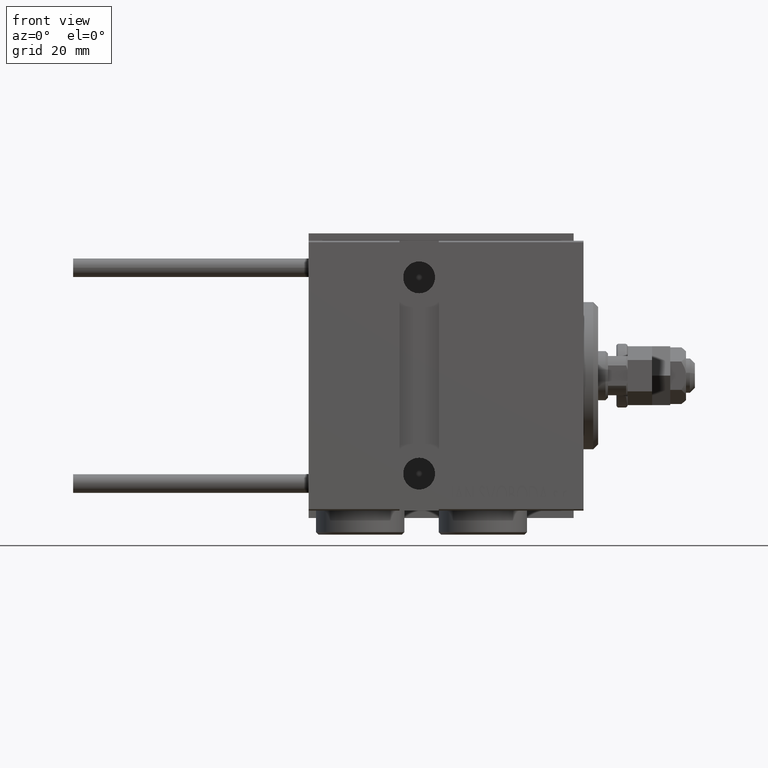
[diagram: clean part render]
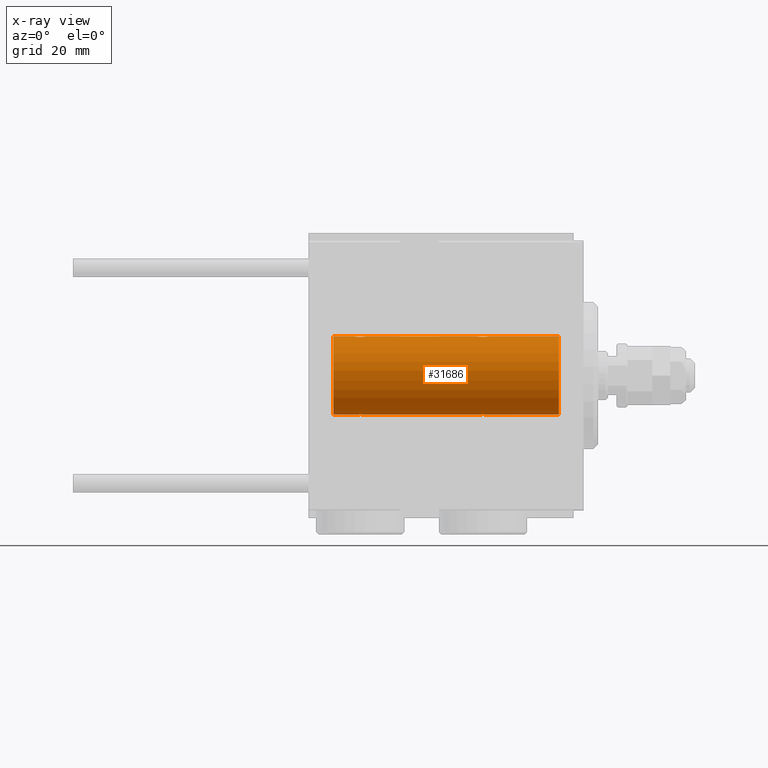
[diagram: x-ray — body ghosted, one internal face saturated and labeled with its STEP entity id]
A machine part, front view, then the same camera in x-ray: the body is ghosted and one INTERNAL B-rep face — a face not visible from any outside direction — is saturated and labeled: STEP entity #31686.
In plain terms, the highlighted cylindrical surface (partial cylindrical patch) has radius 8 mm, axis along (1, 0, -0).
Its self-contained STEP definition (entity closure, byte-faithful):
#20 = CYLINDRICAL_SURFACE ( 'NONE', #2966, 7.999999999999998224 ) ;
#470 = CARTESIAN_POINT ( 'NONE',  ( 21.74181525892405986, 0.1645871186493928773, -7.998709545350109806 ) ) ;
#520 = B_SPLINE_CURVE_WITH_KNOTS ( 'NONE', 3,
 ( #23271, #49651, #50652, #26890, #50157, #3325, #46794, #6960, #50400, #18122, #18367, #49905, #42148, #38788, #14224, #42910, #14476, #30545, #30298, #46287, #30040, #42651 ),
 .UNSPECIFIED., .F., .F.,
 ( 4, 2, 2, 2, 2, 2, 2, 2, 2, 2, 4 ),
 ( 7.980102535687292301E-19, 0.0004892585179631255259, 0.0009785170359262504013, 0.001467775553889375277, 0.001957034071852499935, 0.002201663330834062373, 0.002446292589815624811, 0.002935551107778730170, 0.003424809625741836398, 0.003669438884723392764, 0.003914068143704949564 ),
 .UNSPECIFIED. ) ;
#1534 = CARTESIAN_POINT ( 'NONE',  ( 20.41880150506445091, 1.250030652953407762, 7.901735465557271354 ) ) ;
#2336 = CARTESIAN_POINT ( 'NONE',  ( 21.75000000000000000, -5.069746561688950233E-16, 7.999999999999998224 ) ) ;
#2547 = CARTESIAN_POINT ( 'NONE',  ( 20.66417091690312091, 1.241868426634441747, -7.903038949453011774 ) ) ;
#2787 = CARTESIAN_POINT ( 'NONE',  ( 20.17540961683120315, 1.209888574283871199, 7.907997942808293601 ) ) ;
#2798 = CARTESIAN_POINT ( 'NONE',  ( 21.50031982237068107, 0.7674545364220053401, -7.963965305651049320 ) ) ;
#2966 = AXIS2_PLACEMENT_3D ( 'NONE', #39607, #8556, #8809 ) ;
#3009 = AXIS2_PLACEMENT_3D ( 'NONE', #41959, #14039, #29857 ) ;
#3041 = CARTESIAN_POINT ( 'NONE',  ( 19.25818474107593659, 0.1645871186493936822, 7.998709545350108918 ) ) ;
#3078 = DIRECTION ( 'NONE',  ( -1.000000000000000000, -0.000000000000000000, -0.000000000000000000 ) ) ;
#3325 = CARTESIAN_POINT ( 'NONE',  ( 46.26853298044905216, 0.9991832710565884401, 7.938201675418735448 ) ) ;
#4322 = DIRECTION ( 'NONE',  ( -1.000000000000000000, -0.000000000000000000, -0.000000000000000000 ) ) ;
#4904 = CARTESIAN_POINT ( 'NONE',  ( 21.59173022154696753, 0.6304521543648642368, 7.976560245937300841 ) ) ;
#5338 = LINE ( 'NONE', #48044, #49182 ) ;
#5751 = VECTOR ( 'NONE', #10424, 1000.000000000000000 ) ;
#5787 = LINE ( 'NONE', #45354, #5751 ) ;
#6180 = CARTESIAN_POINT ( 'NONE',  ( 19.87074834296262438, 1.092266057037466487, -7.925334523600932712 ) ) ;
#6404 = CARTESIAN_POINT ( 'NONE',  ( 44.25000000000000711, -6.574401834785964054E-15, -7.999999999999998224 ) ) ;
#6682 = CARTESIAN_POINT ( 'NONE',  ( 19.25000000000000711, -6.253246997522681077E-15, -7.999999999999998224 ) ) ;
#6926 = CARTESIAN_POINT ( 'NONE',  ( 20.09742586614093085, 1.186236229830392341, 7.911627449023364456 ) ) ;
#6955 = LINE ( 'NONE', #22745, #43907 ) ;
#6960 = CARTESIAN_POINT ( 'NONE',  ( 45.82849869077222138, 1.217000984963205967, 7.907141142849010151 ) ) ;
#7174 = CARTESIAN_POINT ( 'NONE',  ( 19.73260908389369916, 1.000368629246206842, 7.938072339095197272 ) ) ;
#7698 = DIRECTION ( 'NONE',  ( -1.000000000000000000, -0.000000000000000000, -0.000000000000000000 ) ) ;
#7775 = FACE_OUTER_BOUND ( 'NONE', #39560, .T. ) ;
#7964 = CARTESIAN_POINT ( 'NONE',  ( 21.68608944587722576, 0.4029817482954558550, -7.990203133273719338 ) ) ;
#8101 = VERTEX_POINT ( 'NONE', #2336 ) ;
#8556 = DIRECTION ( 'NONE',  ( -1.000000000000000000, -0.000000000000000000, -0.000000000000000000 ) ) ;
#8787 = CARTESIAN_POINT ( 'NONE',  ( 21.71733208341543175, 0.3277916934117525161, 7.994719249713582165 ) ) ;
#8809 = DIRECTION ( 'NONE',  ( 0.000000000000000000, 0.000000000000000000, 1.000000000000000000 ) ) ;
#9964 = CARTESIAN_POINT ( 'NONE',  ( 44.25000000000000711, -6.574401834785964054E-15, -7.999999999999998224 ) ) ;
#10048 = CARTESIAN_POINT ( 'NONE',  ( 45.90257413385905494, 1.186236229830389455, -7.911627449023362679 ) ) ;
#10060 = CARTESIAN_POINT ( 'NONE',  ( 19.87017729360625395, 1.092113850919000928, 7.925358570881162024 ) ) ;
#10424 = DIRECTION ( 'NONE',  ( -1.000000000000000000, -0.000000000000000000, -0.000000000000000000 ) ) ;
#10678 = EDGE_CURVE ( 'NONE', #33034, #48731, #15464, .T. ) ;
#11001 = CARTESIAN_POINT ( 'NONE',  ( 21.75000000000000355, 9.797173987965608855E-16, -7.999999999999998224 ) ) ;
#11598 = CARTESIAN_POINT ( 'NONE',  ( 51.00000000000000000, 9.797174393178823685E-16, -7.999999999999998224 ) ) ;
#11929 = CARTESIAN_POINT ( 'NONE',  ( 46.74999999999999289, 9.797173987957720246E-16, -7.999999999999998224 ) ) ;
#12027 = ORIENTED_EDGE ( 'NONE', *, *, #14874, .T. ) ;
#12380 = DIRECTION ( 'NONE',  ( -1.000000000000000000, -0.000000000000000000, -0.000000000000000000 ) ) ;
#12665 = EDGE_CURVE ( 'NONE', #32750, #8101, #6955, .T. ) ;
#12671 = CARTESIAN_POINT ( 'NONE',  ( 21.75000000000000000, 0.1654536524218027937, 7.999999999999998224 ) ) ;
#12917 = CARTESIAN_POINT ( 'NONE',  ( 19.25000000000000711, -6.253246997522681077E-15, -7.999999999999998224 ) ) ;
#13776 = DIRECTION ( 'NONE',  ( 0.000000000000000000, 0.000000000000000000, 1.000000000000000000 ) ) ;
#14039 = DIRECTION ( 'NONE',  ( -1.000000000000000000, 0.000000000000000000, 0.000000000000000000 ) ) ;
#14188 = CARTESIAN_POINT ( 'NONE',  ( 19.25000000000000355, -4.052141811848771341E-23, 7.999999999999998224 ) ) ;
#14224 = CARTESIAN_POINT ( 'NONE',  ( 44.73260908389369916, 1.000368629246204843, 7.938072339095200824 ) ) ;
#14447 = CARTESIAN_POINT ( 'NONE',  ( 20.90257413385907270, 1.186236229830388345, -7.911627449023368008 ) ) ;
#14476 = CARTESIAN_POINT ( 'NONE',  ( 44.40795032378955653, 0.6298709050361934736, 7.976604806854521001 ) ) ;
#14874 = EDGE_CURVE ( 'NONE', #8101, #33034, #30574, .T. ) ;
#14880 = ORIENTED_EDGE ( 'NONE', *, *, #12665, .T. ) ;
#15286 = CARTESIAN_POINT ( 'NONE',  ( 4.999999999999997335, 9.797174393178823685E-16, -7.999999999999998224 ) ) ;
#15464 = LINE ( 'NONE', #43132, #42866 ) ;
#15991 = VERTEX_POINT ( 'NONE', #21905 ) ;
#15996 = CARTESIAN_POINT ( 'NONE',  ( 21.75000000000000355, 9.797173987965608855E-16, -7.999999999999998224 ) ) ;
#16538 = ORIENTED_EDGE ( 'NONE', *, *, #40256, .T. ) ;
#16769 = VECTOR ( 'NONE', #12380, 1000.000000000000000 ) ;
#17071 = CIRCLE ( 'NONE', #3009, 7.999999999999998224 ) ;
#17324 = CARTESIAN_POINT ( 'NONE',  ( 20.33582908309688975, 1.241868426634447298, 7.903038949453013551 ) ) ;
#17809 = CARTESIAN_POINT ( 'NONE',  ( 45.58119849493557751, 1.250030652953401322, -7.901735465557271354 ) ) ;
#17868 = EDGE_CURVE ( 'NONE', #46331, #18095, #38146, .T. ) ;
#18095 = VERTEX_POINT ( 'NONE', #11001 ) ;
#18122 = CARTESIAN_POINT ( 'NONE',  ( 45.41880150506444380, 1.250030652953406429, 7.901735465557269578 ) ) ;
#18367 = CARTESIAN_POINT ( 'NONE',  ( 45.33582908309688975, 1.241868426634446854, 7.903038949453013551 ) ) ;
#18590 = CARTESIAN_POINT ( 'NONE',  ( 19.28266791658456825, 0.3277916934117463543, -7.994719249713585718 ) ) ;
#18717 = EDGE_CURVE ( 'NONE', #39881, #18095, #35925, .T. ) ;
#18838 = CARTESIAN_POINT ( 'NONE',  ( 19.40795032378956364, 0.6298709050361938067, 7.976604806854522778 ) ) ;
#18981 = ORIENTED_EDGE ( 'NONE', *, *, #28637, .T. ) ;
#19225 = ORIENTED_EDGE ( 'NONE', *, *, #10678, .T. ) ;
#19524 = EDGE_CURVE ( 'NONE', #15991, #31910, #41563, .T. ) ;
#19617 = CARTESIAN_POINT ( 'NONE',  ( 21.70976650520091411, 0.3250523954932730830, -7.993796610540221614 ) ) ;
#20703 = CARTESIAN_POINT ( 'NONE',  ( 21.26853298044905216, 0.9991832710565867748, 7.938201675418735448 ) ) ;
#21209 = CARTESIAN_POINT ( 'NONE',  ( 20.82849869077221783, 1.217000984963207966, 7.907141142849010151 ) ) ;
#21455 = CARTESIAN_POINT ( 'NONE',  ( 44.28266791658455759, 0.3277916934117462988, -7.994719249713585718 ) ) ;
#21684 = CARTESIAN_POINT ( 'NONE',  ( 19.25000000000000355, -4.052141811848771341E-23, 7.999999999999998224 ) ) ;
#21905 = CARTESIAN_POINT ( 'NONE',  ( 51.00000000000000000, 0.000000000000000000, 7.999999999999998224 ) ) ;
#21944 = CARTESIAN_POINT ( 'NONE',  ( 45.17150130922779283, 1.217000984963200416, -7.907141142849010151 ) ) ;
#22200 = CARTESIAN_POINT ( 'NONE',  ( 45.82459038316879685, 1.209888574283866980, -7.907997942808293601 ) ) ;
#22305 = CARTESIAN_POINT ( 'NONE',  ( 44.25000000000000711, -4.052181254894032391E-23, 7.999999999999998224 ) ) ;
#22477 = CARTESIAN_POINT ( 'NONE',  ( 19.25000000000000711, 0.1654536524217966875, -8.000000000000000000 ) ) ;
#22717 = CARTESIAN_POINT ( 'NONE',  ( 19.49968017762932959, 0.7674545364220068944, 7.963965305651043991 ) ) ;
#22745 = CARTESIAN_POINT ( 'NONE',  ( 51.00000000000000000, 0.000000000000000000, 7.999999999999998224 ) ) ;
#22989 = CARTESIAN_POINT ( 'NONE',  ( 19.50115498801909197, 0.7689725568822818325, -7.963798983873345172 ) ) ;
#23271 = CARTESIAN_POINT ( 'NONE',  ( 46.74999999999999289, -8.213474395867002827E-16, 7.999999999999998224 ) ) ;
#23373 = LINE ( 'NONE', #34995, #41074 ) ;
#24041 = ORIENTED_EDGE ( 'NONE', *, *, #17868, .T. ) ;
#25339 = CARTESIAN_POINT ( 'NONE',  ( 45.33619145091235225, 1.249938428426572656, -7.901750054830718462 ) ) ;
#25601 = CARTESIAN_POINT ( 'NONE',  ( 44.50115498801908842, 0.7689725568822843860, -7.963798983873343396 ) ) ;
#25845 = CARTESIAN_POINT ( 'NONE',  ( 46.12982270639373183, 1.092113850918999818, -7.925358570881163800 ) ) ;
#25904 = ORIENTED_EDGE ( 'NONE', *, *, #29917, .F. ) ;
#26083 = CARTESIAN_POINT ( 'NONE',  ( 46.59204967621045057, 0.6298709050361936956, -7.976604806854522778 ) ) ;
#26114 = CARTESIAN_POINT ( 'NONE',  ( 20.33619145091235936, 1.249938428426572656, -7.901750054830717573 ) ) ;
#26341 = CARTESIAN_POINT ( 'NONE',  ( 44.25000000000001421, 0.1654536524217962712, -8.000000000000000000 ) ) ;
#26369 = CARTESIAN_POINT ( 'NONE',  ( 21.26739091610630084, 1.000368629246204399, -7.938072339095202601 ) ) ;
#26890 = CARTESIAN_POINT ( 'NONE',  ( 46.59173022154698884, 0.6304521543648644588, 7.976560245937302618 ) ) ;
#27468 = B_SPLINE_CURVE_WITH_KNOTS ( 'NONE', 3,
 ( #6404, #26341, #21455, #30241, #25601, #29744, #36967, #21944, #25339, #17809, #45470, #22200, #10048, #25845, #33355, #41595, #26083, #33850, #29992, #37462, #41349, #37970 ),
 .UNSPECIFIED., .F., .F.,
 ( 4, 2, 2, 2, 2, 2, 2, 2, 2, 2, 4 ),
 ( 7.505074081152076538E-19, 0.0004892585179630999388, 0.0009785170359261990101, 0.001467775553889298082, 0.001957034071852397587, 0.002201663330833957422, 0.002446292589815517258, 0.002935551107778656445, 0.003424809625741795632, 0.003669438884723368911, 0.003914068143704942625 ),
 .UNSPECIFIED. ) ;
#27494 = ORIENTED_EDGE ( 'NONE', *, *, #37772, .T. ) ;
#27662 = CARTESIAN_POINT ( 'NONE',  ( 51.00000000000000000, 9.797174393178823685E-16, -7.999999999999998224 ) ) ;
#27803 = ORIENTED_EDGE ( 'NONE', *, *, #19524, .F. ) ;
#28521 = VERTEX_POINT ( 'NONE', #39043 ) ;
#28637 = EDGE_CURVE ( 'NONE', #39881, #38994, #27468, .T. ) ;
#28999 = CARTESIAN_POINT ( 'NONE',  ( 21.75000000000000000, -5.069746561688950233E-16, 7.999999999999998224 ) ) ;
#29744 = CARTESIAN_POINT ( 'NONE',  ( 44.73146701955094784, 0.9991832710565826670, -7.938201675418733672 ) ) ;
#29857 = DIRECTION ( 'NONE',  ( 0.000000000000000000, 0.000000000000000000, 1.000000000000000000 ) ) ;
#29917 = EDGE_CURVE ( 'NONE', #46331, #38993, #5338, .T. ) ;
#29992 = CARTESIAN_POINT ( 'NONE',  ( 46.70976650520091766, 0.3250523954932729165, -7.993796610540221614 ) ) ;
#30040 = CARTESIAN_POINT ( 'NONE',  ( 44.25000000000001421, 0.08164616652084527582, 7.999999999999998224 ) ) ;
#30241 = CARTESIAN_POINT ( 'NONE',  ( 44.40826977845300405, 0.6304521543648577975, -7.976560245937304394 ) ) ;
#30298 = CARTESIAN_POINT ( 'NONE',  ( 44.29023349479908234, 0.3250523954932734161, 7.993796610540221614 ) ) ;
#30545 = CARTESIAN_POINT ( 'NONE',  ( 44.31391055412278490, 0.4029817482954566876, 7.990203133273719338 ) ) ;
#30574 = B_SPLINE_CURVE_WITH_KNOTS ( 'NONE', 3,
 ( #28999, #12671, #8787, #4904, #44732, #20703, #40855, #21209, #36473, #1534, #17324, #2787, #6926, #10060, #7174, #22717, #18838, #38482, #42610, #3041, #42356, #14188 ),
 .UNSPECIFIED., .F., .F.,
 ( 4, 2, 2, 2, 2, 2, 2, 2, 2, 2, 4 ),
 ( 4.925698363725794783E-19, 0.0004892585179631285617, 0.0009785170359262564729, 0.001467775553889384601, 0.001957034071852512512, 0.002201663330834071480, 0.002446292589815630015, 0.002935551107778737977, 0.003424809625741846372, 0.003669438884723400570, 0.003914068143704954768 ),
 .UNSPECIFIED. ) ;
#31686 = ADVANCED_FACE ( 'NONE', ( #7775 ), #20, .F. ) ;
#31910 = VERTEX_POINT ( 'NONE', #11598 ) ;
#32750 = VERTEX_POINT ( 'NONE', #22305 ) ;
#33034 = VERTEX_POINT ( 'NONE', #21684 ) ;
#33355 = CARTESIAN_POINT ( 'NONE',  ( 46.26739091610629373, 1.000368629246204399, -7.938072339095200824 ) ) ;
#33850 = CARTESIAN_POINT ( 'NONE',  ( 46.68608944587722220, 0.4029817482954573538, -7.990203133273721114 ) ) ;
#33877 = CARTESIAN_POINT ( 'NONE',  ( 19.40826977845302537, 0.6304521543648575754, -7.976560245937306171 ) ) ;
#34995 = CARTESIAN_POINT ( 'NONE',  ( 51.00000000000000000, 0.000000000000000000, 7.999999999999998224 ) ) ;
#35925 = LINE ( 'NONE', #27662, #16769 ) ;
#36473 = CARTESIAN_POINT ( 'NONE',  ( 20.66380854908764064, 1.249938428426578652, 7.901750054830715797 ) ) ;
#36967 = CARTESIAN_POINT ( 'NONE',  ( 44.87074834296262082, 1.092266057037466265, -7.925334523600929160 ) ) ;
#37462 = CARTESIAN_POINT ( 'NONE',  ( 46.74181525892407052, 0.1645871186493928495, -7.998709545350109806 ) ) ;
#37772 = EDGE_CURVE ( 'NONE', #15991, #28521, #23373, .T. ) ;
#37970 = CARTESIAN_POINT ( 'NONE',  ( 46.74999999999999289, 9.797173987957720246E-16, -7.999999999999998224 ) ) ;
#37998 = CARTESIAN_POINT ( 'NONE',  ( 20.58119849493555620, 1.250030652953401988, -7.901735465557267801 ) ) ;
#38146 = B_SPLINE_CURVE_WITH_KNOTS ( 'NONE', 3,
 ( #6682, #22477, #18590, #33877, #22989, #46261, #6180, #38759, #26114, #37998, #2547, #49879, #14447, #46005, #26369, #2798, #39010, #7964, #19617, #470, #39537, #15996 ),
 .UNSPECIFIED., .F., .F.,
 ( 4, 2, 2, 2, 2, 2, 2, 2, 2, 2, 4 ),
 ( 4.384776375612755932E-19, 0.0004892585179631271522, 0.0009785170359262538708, 0.001467775553889380698, 0.001957034071852507308, 0.002201663330834065842, 0.002446292589815623510, 0.002935551107778730170, 0.003424809625741835964, 0.003669438884723391463, 0.003914068143704946962 ),
 .UNSPECIFIED. ) ;
#38482 = CARTESIAN_POINT ( 'NONE',  ( 19.31391055412277069, 0.4029817482954574648, 7.990203133273719338 ) ) ;
#38759 = CARTESIAN_POINT ( 'NONE',  ( 20.17150130922778573, 1.217000984963200860, -7.907141142849008375 ) ) ;
#38788 = CARTESIAN_POINT ( 'NONE',  ( 44.87017729360625395, 1.092113850919002038, 7.925358570881160247 ) ) ;
#38993 = VERTEX_POINT ( 'NONE', #15286 ) ;
#38994 = VERTEX_POINT ( 'NONE', #11929 ) ;
#39010 = CARTESIAN_POINT ( 'NONE',  ( 21.59204967621043991, 0.6298709050361920303, -7.976604806854521001 ) ) ;
#39043 = CARTESIAN_POINT ( 'NONE',  ( 46.74999999999999289, -8.213474395867002827E-16, 7.999999999999998224 ) ) ;
#39537 = CARTESIAN_POINT ( 'NONE',  ( 21.75000000000000000, 0.08164616652084619175, -7.999999999999998224 ) ) ;
#39560 = EDGE_LOOP ( 'NONE', ( #45639, #27803, #27494, #49473, #14880, #12027, #19225, #16538, #25904, #24041, #48745, #18981 ) ) ;
#39607 = CARTESIAN_POINT ( 'NONE',  ( 51.00000000000000000, 0.000000000000000000, 0.000000000000000000 ) ) ;
#39881 = VERTEX_POINT ( 'NONE', #9964 ) ;
#40102 = CARTESIAN_POINT ( 'NONE',  ( 4.999999999999997335, 0.000000000000000000, 7.999999999999998224 ) ) ;
#40256 = EDGE_CURVE ( 'NONE', #48731, #38993, #17071, .T. ) ;
#40855 = CARTESIAN_POINT ( 'NONE',  ( 21.12925165703737918, 1.092266057037473592, 7.925334523600929160 ) ) ;
#41074 = VECTOR ( 'NONE', #47686, 1000.000000000000000 ) ;
#41349 = CARTESIAN_POINT ( 'NONE',  ( 46.75000000000000000, 0.08164616652084634441, -8.000000000000000000 ) ) ;
#41563 = CIRCLE ( 'NONE', #50617, 7.999999999999998224 ) ;
#41595 = CARTESIAN_POINT ( 'NONE',  ( 46.50031982237067751, 0.7674545364220052290, -7.963965305651049320 ) ) ;
#41959 = CARTESIAN_POINT ( 'NONE',  ( 4.999999999999997335, 0.000000000000000000, 0.000000000000000000 ) ) ;
#42148 = CARTESIAN_POINT ( 'NONE',  ( 45.09742586614095217, 1.186236229830393452, 7.911627449023366232 ) ) ;
#42356 = CARTESIAN_POINT ( 'NONE',  ( 19.25000000000000355, 0.08164616652084565052, 7.999999999999996447 ) ) ;
#42610 = CARTESIAN_POINT ( 'NONE',  ( 19.29023349479908234, 0.3250523954932734716, 7.993796610540219838 ) ) ;
#42651 = CARTESIAN_POINT ( 'NONE',  ( 44.25000000000000711, -4.052181254894032391E-23, 7.999999999999998224 ) ) ;
#42866 = VECTOR ( 'NONE', #7698, 1000.000000000000000 ) ;
#42910 = CARTESIAN_POINT ( 'NONE',  ( 44.49968017762931538, 0.7674545364220040078, 7.963965305651043991 ) ) ;
#43132 = CARTESIAN_POINT ( 'NONE',  ( 51.00000000000000000, 0.000000000000000000, 7.999999999999998224 ) ) ;
#43135 = EDGE_CURVE ( 'NONE', #28521, #32750, #520, .T. ) ;
#43907 = VECTOR ( 'NONE', #3078, 1000.000000000000000 ) ;
#44732 = CARTESIAN_POINT ( 'NONE',  ( 21.49884501198092579, 0.7689725568822877166, 7.963798983873341619 ) ) ;
#45354 = CARTESIAN_POINT ( 'NONE',  ( 51.00000000000000000, 9.797174393178823685E-16, -7.999999999999998224 ) ) ;
#45470 = CARTESIAN_POINT ( 'NONE',  ( 45.66417091690310315, 1.241868426634441969, -7.903038949453011774 ) ) ;
#45639 = ORIENTED_EDGE ( 'NONE', *, *, #47288, .F. ) ;
#46005 = CARTESIAN_POINT ( 'NONE',  ( 21.12982270639374605, 1.092113850918997153, -7.925358570881165576 ) ) ;
#46261 = CARTESIAN_POINT ( 'NONE',  ( 19.73146701955095494, 0.9991832710565806686, -7.938201675418735448 ) ) ;
#46287 = CARTESIAN_POINT ( 'NONE',  ( 44.25818474107593659, 0.1645871186493931548, 7.998709545350111583 ) ) ;
#46331 = VERTEX_POINT ( 'NONE', #12917 ) ;
#46794 = CARTESIAN_POINT ( 'NONE',  ( 46.12925165703737207, 1.092266057037471594, 7.925334523600927383 ) ) ;
#47288 = EDGE_CURVE ( 'NONE', #31910, #38994, #5787, .T. ) ;
#47686 = DIRECTION ( 'NONE',  ( -1.000000000000000000, -0.000000000000000000, -0.000000000000000000 ) ) ;
#48044 = CARTESIAN_POINT ( 'NONE',  ( 51.00000000000000000, 9.797174393178823685E-16, -7.999999999999998224 ) ) ;
#48731 = VERTEX_POINT ( 'NONE', #40102 ) ;
#48745 = ORIENTED_EDGE ( 'NONE', *, *, #18717, .F. ) ;
#49182 = VECTOR ( 'NONE', #4322, 1000.000000000000000 ) ;
#49473 = ORIENTED_EDGE ( 'NONE', *, *, #43135, .T. ) ;
#49651 = CARTESIAN_POINT ( 'NONE',  ( 46.75000000000000000, 0.1654536524218023774, 7.999999999999998224 ) ) ;
#49879 = CARTESIAN_POINT ( 'NONE',  ( 20.82459038316880395, 1.209888574283866758, -7.907997942808293601 ) ) ;
#49905 = CARTESIAN_POINT ( 'NONE',  ( 45.17540961683120315, 1.209888574283871199, 7.907997942808294489 ) ) ;
#49949 = CARTESIAN_POINT ( 'NONE',  ( 51.00000000000000000, 0.000000000000000000, 0.000000000000000000 ) ) ;
#50157 = CARTESIAN_POINT ( 'NONE',  ( 46.49884501198091158, 0.7689725568822900481, 7.963798983873341619 ) ) ;
#50202 = DIRECTION ( 'NONE',  ( -1.000000000000000000, 0.000000000000000000, 0.000000000000000000 ) ) ;
#50400 = CARTESIAN_POINT ( 'NONE',  ( 45.66380854908764775, 1.249938428426579540, 7.901750054830717573 ) ) ;
#50617 = AXIS2_PLACEMENT_3D ( 'NONE', #49949, #50202, #13776 ) ;
#50652 = CARTESIAN_POINT ( 'NONE',  ( 46.71733208341543531, 0.3277916934117521830, 7.994719249713582165 ) ) ;